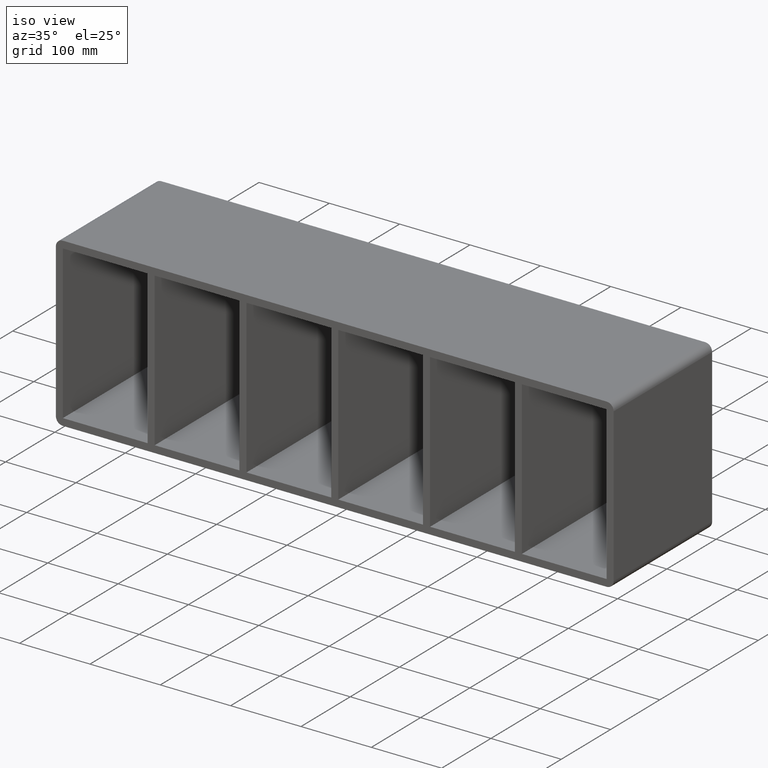
[diagram: clean part render]
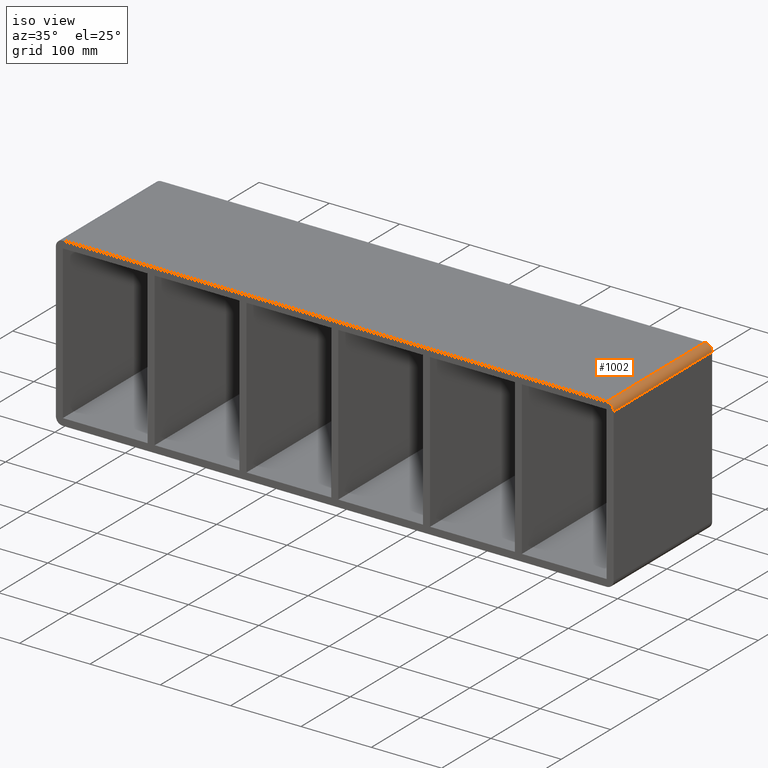
[diagram: same view with one face highlighted and labeled with its STEP entity id]
A machine part, iso view. The second image highlights one B-rep face of the part: STEP entity #1002.
In plain terms, the highlighted cylindrical surface (edge-blend (fillet) strip) has radius 10 mm, axis along (0, -1, 0).
Its self-contained STEP definition (entity closure, byte-faithful):
#833=CARTESIAN_POINT('',(396.50000000000006,-3.0,108.99999999999999));
#834=VERTEX_POINT('',#833);
#841=CARTESIAN_POINT('',(386.50000000000006,-3.0,118.99999999999999));
#842=VERTEX_POINT('',#841);
#843=CARTESIAN_POINT('',(386.50000000000006,-3.0,108.99999999999999));
#844=DIRECTION('',(0.0,1.0,0.0));
#845=DIRECTION('',(0.707106781186547,0.0,0.707106781186547));
#846=AXIS2_PLACEMENT_3D('',#843,#844,#845);
#847=CIRCLE('',#846,9.999999999999998);
#848=EDGE_CURVE('',#842,#834,#847,.T.);
#971=CARTESIAN_POINT('',(386.50000000000006,0.0,108.99999999999999));
#972=DIRECTION('',(0.0,-1.0,0.0));
#973=DIRECTION('',(0.707106781186547,0.0,0.707106781186547));
#974=AXIS2_PLACEMENT_3D('',#971,#972,#973);
#975=CYLINDRICAL_SURFACE('',#974,10.0);
#976=ORIENTED_EDGE('',*,*,#848,.T.);
#977=CARTESIAN_POINT('',(396.50000000000006,197.0,108.99999999999999));
#978=VERTEX_POINT('',#977);
#979=CARTESIAN_POINT('',(396.50000000000006,-3.0,108.99999999999999));
#980=DIRECTION('',(0.0,1.0,0.0));
#981=VECTOR('',#980,200.0);
#982=LINE('',#979,#981);
#983=EDGE_CURVE('',#834,#978,#982,.T.);
#984=ORIENTED_EDGE('',*,*,#983,.T.);
#985=CARTESIAN_POINT('',(386.50000000000006,197.0,118.99999999999999));
#986=VERTEX_POINT('',#985);
#987=CARTESIAN_POINT('',(386.50000000000006,197.0,108.99999999999999));
#988=DIRECTION('',(0.0,-1.0,0.0));
#989=DIRECTION('',(0.707106781186547,0.0,0.707106781186547));
#990=AXIS2_PLACEMENT_3D('',#987,#988,#989);
#991=CIRCLE('',#990,9.999999999999998);
#992=EDGE_CURVE('',#978,#986,#991,.T.);
#993=ORIENTED_EDGE('',*,*,#992,.T.);
#994=CARTESIAN_POINT('',(386.50000000000006,197.0,118.99999999999999));
#995=DIRECTION('',(0.0,-1.0,0.0));
#996=VECTOR('',#995,200.0);
#997=LINE('',#994,#996);
#998=EDGE_CURVE('',#986,#842,#997,.T.);
#999=ORIENTED_EDGE('',*,*,#998,.T.);
#1000=EDGE_LOOP('',(#976,#984,#993,#999));
#1001=FACE_OUTER_BOUND('',#1000,.T.);
#1002=ADVANCED_FACE('',(#1001),#975,.T.);